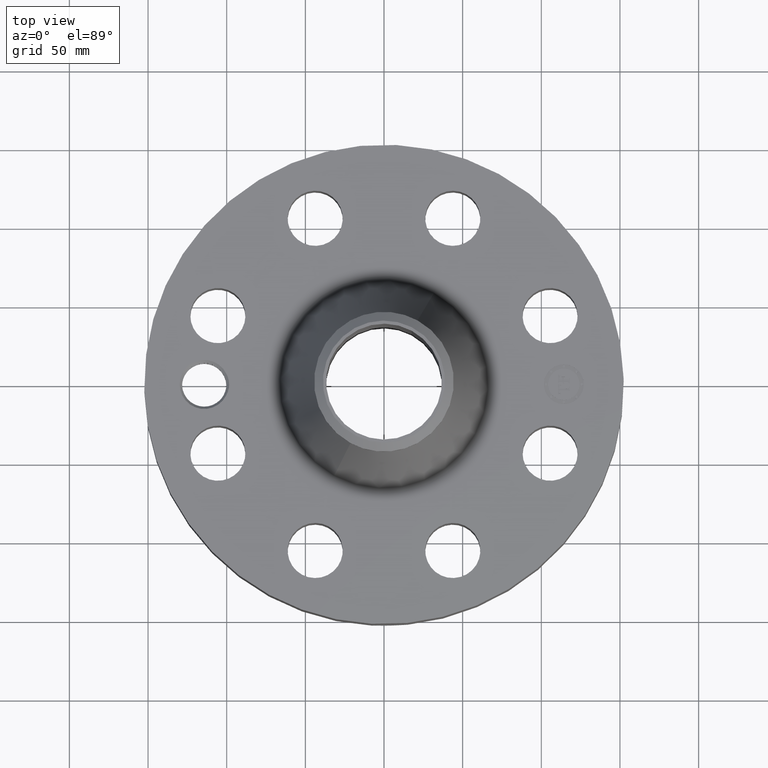
[diagram: clean part render]
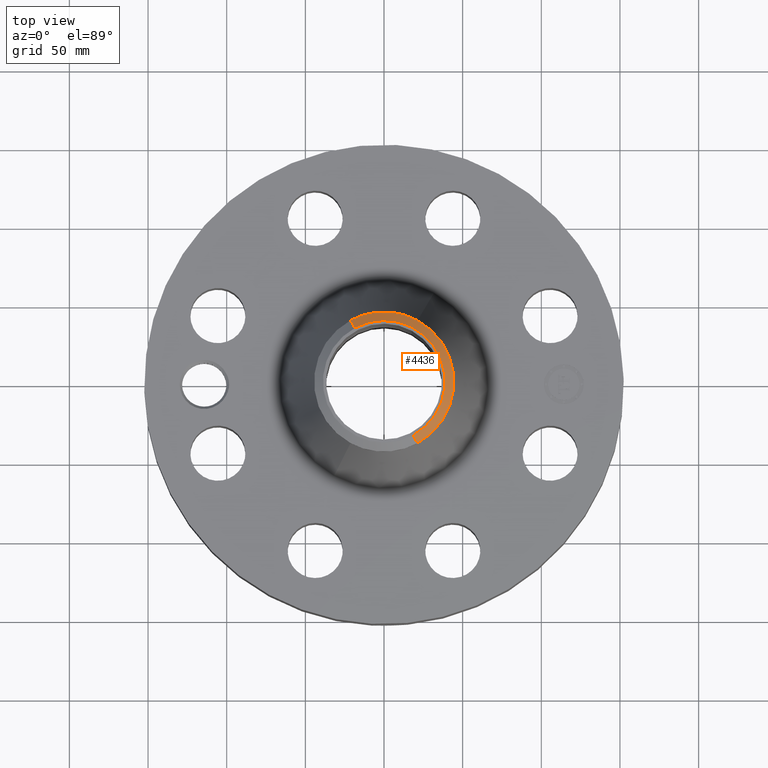
[diagram: same view with one face highlighted and labeled with its STEP entity id]
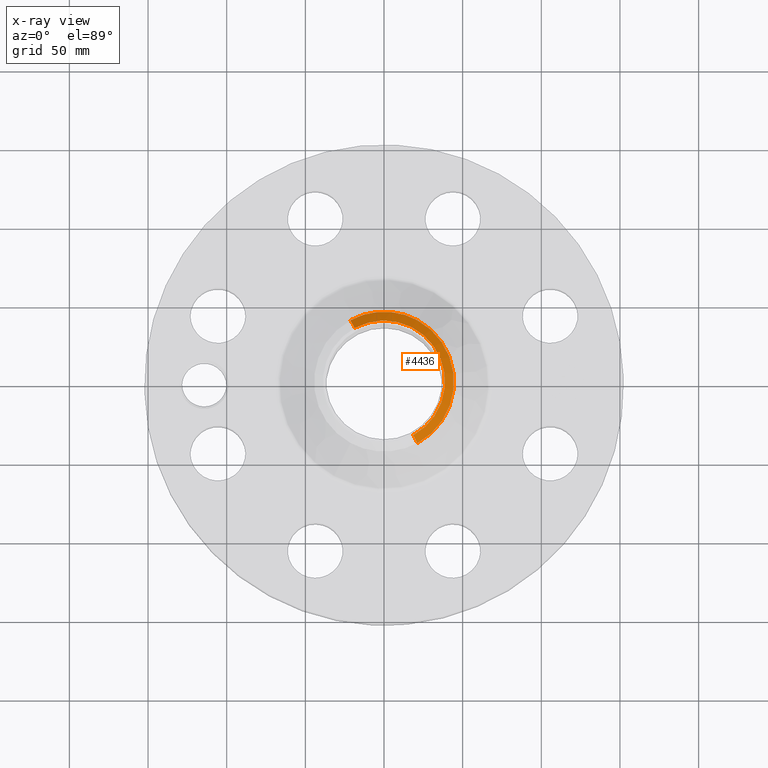
[diagram: x-ray of the same camera — body ghosted, the highlighted face saturated]
A machine part, top view. The second image highlights one B-rep face of the part: STEP entity #4436.
The next image is the same camera in x-ray: the body ghosted, the highlighted face saturated — about 0% of this face is hidden behind the body in this view.
In plain terms, the highlighted conical surface has half-angle 52.5 deg.
Its self-contained STEP definition (entity closure, byte-faithful):
#3263=AXIS2_PLACEMENT_3D('Circle Axis2P3D',#3261,#3262,$) ;
#3290=AXIS2_PLACEMENT_3D('Circle Axis2P3D',#3288,#3289,$) ;
#4064=AXIS2_PLACEMENT_3D('Circle Axis2P3D',#4062,#4063,$) ;
#4417=AXIS2_PLACEMENT_3D('Cone Axis2P3D',#4414,#4415,#4416) ;
#3258=CARTESIAN_POINT('Vertex',(0.838994692561,1.53576948331,6.70022135151)) ;
#3261=CARTESIAN_POINT('Axis2P3D Location',(0.,0.,6.70022135151)) ;
#3265=CARTESIAN_POINT('Vertex',(0.838994692561,-1.53576948331,6.70022135151)) ;
#3285=CARTESIAN_POINT('Vertex',(-0.838994692561,1.53576948331,6.70022135151)) ;
#3288=CARTESIAN_POINT('Axis2P3D Location',(0.,0.,6.70022135151)) ;
#4062=CARTESIAN_POINT('Axis2P3D Location',(0.,0.,6.87000000003)) ;
#4066=CARTESIAN_POINT('Vertex',(0.732917073389,-1.34159570387,6.87000000003)) ;
#4068=CARTESIAN_POINT('Vertex',(-0.732917073389,1.34159570387,6.87000000003)) ;
#4414=CARTESIAN_POINT('Axis2P3D Location',(0.,0.,6.87000000003)) ;
#4419=CARTESIAN_POINT('Line Origine',(-0.785955882975,1.43868259359,6.78511067577)) ;
#4424=CARTESIAN_POINT('Line Origine',(0.785955882975,-1.43868259359,6.78511067577)) ;
#3262=DIRECTION('Axis2P3D Direction',(0.,0.,-0.0393700787402)) ;
#3289=DIRECTION('Axis2P3D Direction',(0.,0.,-0.0393700787402)) ;
#4063=DIRECTION('Axis2P3D Direction',(0.,0.,-0.0393700787402)) ;
#4415=DIRECTION('Axis2P3D Direction',(-0.,-0.,-0.0393700787402)) ;
#4416=DIRECTION('Axis2P3D XDirection',(0.0188750212049,-0.0345504945626,0.)) ;
#4420=DIRECTION('Vector Direction',(-0.014974561121,0.02741075027,-0.023966985394)) ;
#4425=DIRECTION('Vector Direction',(0.014974561121,-0.02741075027,-0.023966985394)) ;
#4421=VECTOR('Line Direction',#4420,0.0393700787402) ;
#4426=VECTOR('Line Direction',#4425,0.0393700787402) ;
#4430=ORIENTED_EDGE('',*,*,#4423,.F.) ;
#4431=ORIENTED_EDGE('',*,*,#4070,.F.) ;
#4432=ORIENTED_EDGE('',*,*,#4428,.T.) ;
#4433=ORIENTED_EDGE('',*,*,#3267,.T.) ;
#4434=ORIENTED_EDGE('',*,*,#3292,.F.) ;
#4436=ADVANCED_FACE('PartBody',(#4435),#4418,.T.) ;
#3264=CIRCLE('generated circle',#3263,1.75000000001) ;
#3291=CIRCLE('generated circle',#3290,1.75000000001) ;
#4065=CIRCLE('generated circle',#4064,1.52874015749) ;
#4418=CONICAL_SURFACE('Cone',#4417,1.52874015749,0.916297857297) ;
#3267=EDGE_CURVE('',#3266,#3259,#3264,.F.) ;
#3292=EDGE_CURVE('',#3286,#3259,#3291,.T.) ;
#4070=EDGE_CURVE('',#4067,#4069,#4065,.F.) ;
#4423=EDGE_CURVE('',#4069,#3286,#4422,.T.) ;
#4428=EDGE_CURVE('',#4067,#3266,#4427,.T.) ;
#4429=EDGE_LOOP('',(#4430,#4431,#4432,#4433,#4434)) ;
#4435=FACE_OUTER_BOUND('',#4429,.T.) ;
#4422=LINE('Line',#4419,#4421) ;
#4427=LINE('Line',#4424,#4426) ;
#3259=VERTEX_POINT('',#3258) ;
#3266=VERTEX_POINT('',#3265) ;
#3286=VERTEX_POINT('',#3285) ;
#4067=VERTEX_POINT('',#4066) ;
#4069=VERTEX_POINT('',#4068) ;